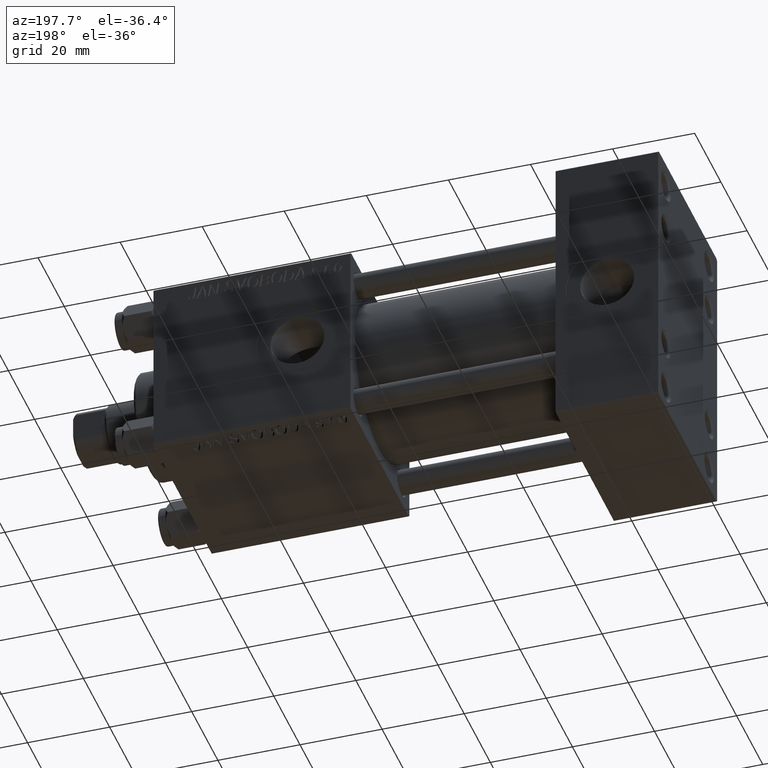
[diagram: clean part render]
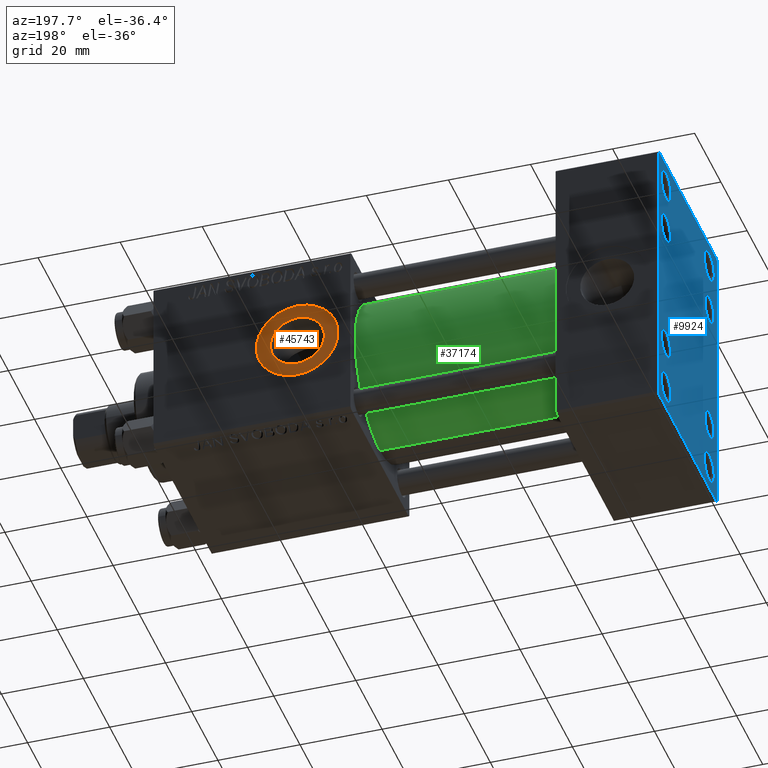
[diagram: same view with three faces highlighted in distinct colors, each labeled with its STEP entity id]
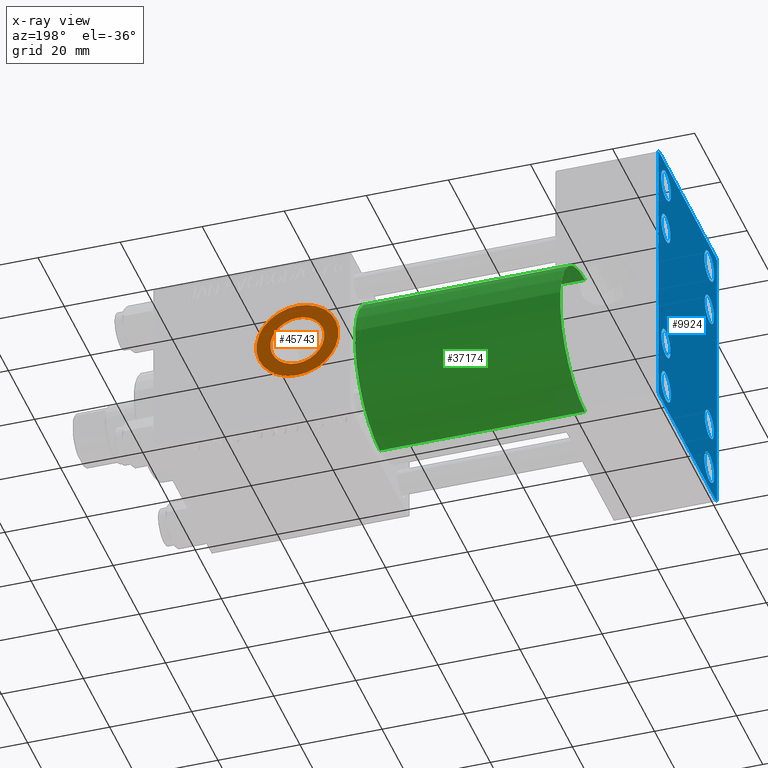
[diagram: x-ray of the same camera — body ghosted, the three highlighted faces saturated]
A machine part, auxiliary view with three faces highlighted in distinct colors.
The next image is the same camera in x-ray (body ghosted, the three faces saturated) — at least one of them is partly hidden behind the body in this view.
Their STEP definitions:

[orange] entity #45743 — the highlighted planar face has unit normal (0, 1, 0).
#512 = CIRCLE ( 'NONE', #35987, 9.999999999999994671 ) ;
#2442 = ORIENTED_EDGE ( 'NONE', *, *, #12221, .T. ) ;
#3038 = DIRECTION ( 'NONE',  ( 0.000000000000000000, 1.000000000000000000, 0.000000000000000000 ) ) ;
#4332 = VERTEX_POINT ( 'NONE', #48278 ) ;
#4487 = AXIS2_PLACEMENT_3D ( 'NONE', #41288, #21078, #33191 ) ;
#5276 = CIRCLE ( 'NONE', #4487, 6.580000000000002736 ) ;
#5495 = VERTEX_POINT ( 'NONE', #10060 ) ;
#6407 = AXIS2_PLACEMENT_3D ( 'NONE', #24805, #43787, #31646 ) ;
#10060 = CARTESIAN_POINT ( 'NONE',  ( 88.00000000000001421, 22.30000000000000426, 9.999999999999994671 ) ) ;
#10211 = EDGE_LOOP ( 'NONE', ( #15109, #29130 ) ) ;
#10616 = EDGE_CURVE ( 'NONE', #10955, #4332, #5276, .T. ) ;
#10955 = VERTEX_POINT ( 'NONE', #38181 ) ;
#11666 = DIRECTION ( 'NONE',  ( 0.000000000000000000, 0.000000000000000000, 1.000000000000000000 ) ) ;
#12041 = ORIENTED_EDGE ( 'NONE', *, *, #13263, .T. ) ;
#12221 = EDGE_CURVE ( 'NONE', #5495, #44033, #31901, .T. ) ;
#13263 = EDGE_CURVE ( 'NONE', #44033, #5495, #512, .T. ) ;
#15109 = ORIENTED_EDGE ( 'NONE', *, *, #21558, .F. ) ;
#16243 = FACE_BOUND ( 'NONE', #10211, .T. ) ;
#20125 = AXIS2_PLACEMENT_3D ( 'NONE', #23017, #41739, #11666 ) ;
#20755 = PLANE ( 'NONE',  #6407 ) ;
#20945 = CIRCLE ( 'NONE', #20125, 6.580000000000002736 ) ;
#21004 = FACE_OUTER_BOUND ( 'NONE', #44561, .T. ) ;
#21078 = DIRECTION ( 'NONE',  ( 0.000000000000000000, 1.000000000000000000, 0.000000000000000000 ) ) ;
#21558 = EDGE_CURVE ( 'NONE', #4332, #10955, #20945, .T. ) ;
#23017 = CARTESIAN_POINT ( 'NONE',  ( 88.00000000000001421, 22.30000000000000426, 0.000000000000000000 ) ) ;
#24805 = CARTESIAN_POINT ( 'NONE',  ( 88.00000000000001421, 22.30000000000000426, 0.000000000000000000 ) ) ;
#29130 = ORIENTED_EDGE ( 'NONE', *, *, #10616, .F. ) ;
#30040 = DIRECTION ( 'NONE',  ( 0.000000000000000000, 1.000000000000000000, 0.000000000000000000 ) ) ;
#30288 = DIRECTION ( 'NONE',  ( 0.000000000000000000, 0.000000000000000000, 1.000000000000000000 ) ) ;
#31646 = DIRECTION ( 'NONE',  ( 0.000000000000000000, -0.000000000000000000, 1.000000000000000000 ) ) ;
#31901 = CIRCLE ( 'NONE', #47263, 9.999999999999994671 ) ;
#33191 = DIRECTION ( 'NONE',  ( 0.000000000000000000, 0.000000000000000000, 1.000000000000000000 ) ) ;
#35987 = AXIS2_PLACEMENT_3D ( 'NONE', #37635, #3038, #30288 ) ;
#37635 = CARTESIAN_POINT ( 'NONE',  ( 88.00000000000001421, 22.30000000000000426, 0.000000000000000000 ) ) ;
#38181 = CARTESIAN_POINT ( 'NONE',  ( 88.00000000000001421, 22.30000000000000426, -6.580000000000002736 ) ) ;
#41288 = CARTESIAN_POINT ( 'NONE',  ( 88.00000000000001421, 22.30000000000000426, 0.000000000000000000 ) ) ;
#41739 = DIRECTION ( 'NONE',  ( 0.000000000000000000, 1.000000000000000000, 0.000000000000000000 ) ) ;
#43787 = DIRECTION ( 'NONE',  ( 0.000000000000000000, 1.000000000000000000, 0.000000000000000000 ) ) ;
#44033 = VERTEX_POINT ( 'NONE', #45626 ) ;
#44240 = CARTESIAN_POINT ( 'NONE',  ( 88.00000000000001421, 22.30000000000000426, 0.000000000000000000 ) ) ;
#44561 = EDGE_LOOP ( 'NONE', ( #2442, #12041 ) ) ;
#45626 = CARTESIAN_POINT ( 'NONE',  ( 88.00000000000001421, 22.30000000000000426, -9.999999999999994671 ) ) ;
#45743 = ADVANCED_FACE ( 'NONE', ( #16243, #21004 ), #20755, .T. ) ;
#47263 = AXIS2_PLACEMENT_3D ( 'NONE', #44240, #30040, #49519 ) ;
#48278 = CARTESIAN_POINT ( 'NONE',  ( 88.00000000000001421, 22.30000000000000426, 6.580000000000002736 ) ) ;
#49519 = DIRECTION ( 'NONE',  ( 0.000000000000000000, 0.000000000000000000, 1.000000000000000000 ) ) ;

[blue] entity #9924 — the highlighted planar face has unit normal (-1, 0, 0).
#251 = VECTOR ( 'NONE', #12976, 999.9999999999998863 ) ;
#463 = DIRECTION ( 'NONE',  ( 0.000000000000000000, 0.000000000000000000, 1.000000000000000000 ) ) ;
#599 = CARTESIAN_POINT ( 'NONE',  ( -0.000000000000000000, -28.50000000000015632, 28.49999999999976197 ) ) ;
#1045 = CARTESIAN_POINT ( 'NONE',  ( 0.000000000000000000, -16.50000000000000711, -32.74999999999997868 ) ) ;
#1120 = VERTEX_POINT ( 'NONE', #47154 ) ;
#1559 = AXIS2_PLACEMENT_3D ( 'NONE', #25576, #14703, #22274 ) ;
#2197 = EDGE_CURVE ( 'NONE', #34756, #6353, #39510, .T. ) ;
#2431 = VERTEX_POINT ( 'NONE', #5349 ) ;
#2604 = DIRECTION ( 'NONE',  ( 0.000000000000000000, 0.000000000000000000, 1.000000000000000000 ) ) ;
#2624 = LINE ( 'NONE', #28887, #25644 ) ;
#3332 = ORIENTED_EDGE ( 'NONE', *, *, #42785, .F. ) ;
#3347 = CARTESIAN_POINT ( 'NONE',  ( 0.000000000000000000, 22.00000000000000355, 35.00000000000000711 ) ) ;
#3505 = EDGE_LOOP ( 'NONE', ( #44525, #20790 ) ) ;
#3697 = EDGE_LOOP ( 'NONE', ( #30006, #47132 ) ) ;
#3852 = DIRECTION ( 'NONE',  ( 0.000000000000000000, 0.000000000000000000, -1.000000000000000000 ) ) ;
#4007 = CARTESIAN_POINT ( 'NONE',  ( 0.000000000000000000, 16.49999999999999289, -29.00000000000000711 ) ) ;
#4340 = DIRECTION ( 'NONE',  ( 0.000000000000000000, 0.000000000000000000, 1.000000000000000000 ) ) ;
#4653 = VERTEX_POINT ( 'NONE', #26419 ) ;
#4678 = CIRCLE ( 'NONE', #48233, 3.499999999999996003 ) ;
#4761 = CARTESIAN_POINT ( 'NONE',  ( 0.000000000000000000, -16.50000000000000711, 32.74999999999996447 ) ) ;
#5349 = CARTESIAN_POINT ( 'NONE',  ( 0.000000000000000000, 16.59999999999999787, 13.10000000000000675 ) ) ;
#5490 = VECTOR ( 'NONE', #13975, 1000.000000000000000 ) ;
#5611 = ORIENTED_EDGE ( 'NONE', *, *, #24217, .T. ) ;
#5694 = FACE_OUTER_BOUND ( 'NONE', #16878, .T. ) ;
#6090 = AXIS2_PLACEMENT_3D ( 'NONE', #34222, #48735, #22605 ) ;
#6176 = EDGE_CURVE ( 'NONE', #17467, #39883, #41528, .T. ) ;
#6353 = VERTEX_POINT ( 'NONE', #49466 ) ;
#6423 = ORIENTED_EDGE ( 'NONE', *, *, #23544, .T. ) ;
#6638 = EDGE_CURVE ( 'NONE', #30995, #11650, #14029, .T. ) ;
#6706 = DIRECTION ( 'NONE',  ( -0.000000000000000000, -0.7071067811865525687, -0.7071067811865425767 ) ) ;
#7147 = CIRCLE ( 'NONE', #11192, 3.499999999999996003 ) ;
#7180 = EDGE_CURVE ( 'NONE', #1120, #4653, #45613, .T. ) ;
#7533 = DIRECTION ( 'NONE',  ( 1.000000000000000000, -0.000000000000000000, 0.000000000000000000 ) ) ;
#7715 = AXIS2_PLACEMENT_3D ( 'NONE', #13616, #32807, #36115 ) ;
#8147 = EDGE_CURVE ( 'NONE', #20565, #42917, #46579, .T. ) ;
#8208 = VERTEX_POINT ( 'NONE', #27089 ) ;
#9215 = EDGE_LOOP ( 'NONE', ( #32690, #39196 ) ) ;
#9479 = FACE_BOUND ( 'NONE', #25355, .T. ) ;
#9924 = ADVANCED_FACE ( 'NONE', ( #40534, #29640, #22046, #37478, #17041, #9479, #40295, #48135, #5694 ), #21066, .T. ) ;
#9959 = LINE ( 'NONE', #36968, #5490 ) ;
#10067 = CARTESIAN_POINT ( 'NONE',  ( 0.000000000000000000, -16.59999999999999076, -16.60000000000000853 ) ) ;
#10086 = AXIS2_PLACEMENT_3D ( 'NONE', #36598, #25206, #36844 ) ;
#10132 = CIRCLE ( 'NONE', #37567, 3.499999999999996003 ) ;
#11026 = CIRCLE ( 'NONE', #6090, 3.749999999999975575 ) ;
#11107 = EDGE_LOOP ( 'NONE', ( #33463, #35536 ) ) ;
#11192 = AXIS2_PLACEMENT_3D ( 'NONE', #28865, #25814, #2604 ) ;
#11487 = CARTESIAN_POINT ( 'NONE',  ( 0.000000000000000000, -16.59999999999999076, 20.10000000000000853 ) ) ;
#11546 = AXIS2_PLACEMENT_3D ( 'NONE', #49225, #34276, #29737 ) ;
#11650 = VERTEX_POINT ( 'NONE', #23071 ) ;
#11796 = CARTESIAN_POINT ( 'NONE',  ( 0.000000000000000000, -16.59999999999999076, 13.10000000000001030 ) ) ;
#11900 = DIRECTION ( 'NONE',  ( 0.000000000000000000, 0.000000000000000000, 1.000000000000000000 ) ) ;
#12172 = DIRECTION ( 'NONE',  ( 1.000000000000000000, -0.000000000000000000, 0.000000000000000000 ) ) ;
#12586 = VERTEX_POINT ( 'NONE', #11487 ) ;
#12797 = CARTESIAN_POINT ( 'NONE',  ( 0.000000000000000000, -16.59999999999999076, -16.60000000000000853 ) ) ;
#12976 = DIRECTION ( 'NONE',  ( 0.000000000000000000, 0.7071067811865376918, -0.7071067811865574537 ) ) ;
#13616 = CARTESIAN_POINT ( 'NONE',  ( 0.000000000000000000, 16.59999999999999787, -16.60000000000000497 ) ) ;
#13778 = LINE ( 'NONE', #26109, #23265 ) ;
#13975 = DIRECTION ( 'NONE',  ( 0.000000000000000000, -1.000000000000000000, -1.541976423090495387E-16 ) ) ;
#14029 = LINE ( 'NONE', #21599, #48795 ) ;
#14086 = DIRECTION ( 'NONE',  ( 1.000000000000000000, -0.000000000000000000, 0.000000000000000000 ) ) ;
#14400 = ORIENTED_EDGE ( 'NONE', *, *, #17964, .T. ) ;
#14703 = DIRECTION ( 'NONE',  ( 1.000000000000000000, -0.000000000000000000, 0.000000000000000000 ) ) ;
#15245 = CARTESIAN_POINT ( 'NONE',  ( 0.000000000000000000, 16.49999999999999289, 28.99999999999998934 ) ) ;
#15426 = CARTESIAN_POINT ( 'NONE',  ( 0.000000000000000000, 16.59999999999999787, 16.60000000000000497 ) ) ;
#15661 = DIRECTION ( 'NONE',  ( 1.000000000000000000, -0.000000000000000000, 0.000000000000000000 ) ) ;
#16525 = CARTESIAN_POINT ( 'NONE',  ( 0.000000000000000000, -16.50000000000000711, -29.00000000000000711 ) ) ;
#16644 = CARTESIAN_POINT ( 'NONE',  ( 0.000000000000000000, -22.49999999999999645, -34.50000000000000000 ) ) ;
#16850 = CIRCLE ( 'NONE', #37032, 3.499999999999996003 ) ;
#16878 = EDGE_LOOP ( 'NONE', ( #39740, #20438, #38193, #14400, #29089, #36999, #3332, #35523 ) ) ;
#17041 = FACE_BOUND ( 'NONE', #41213, .T. ) ;
#17075 = VERTEX_POINT ( 'NONE', #45405 ) ;
#17467 = VERTEX_POINT ( 'NONE', #18405 ) ;
#17665 = DIRECTION ( 'NONE',  ( 0.000000000000000000, 0.000000000000000000, -1.000000000000000000 ) ) ;
#17964 = EDGE_CURVE ( 'NONE', #34479, #18479, #13778, .T. ) ;
#18178 = AXIS2_PLACEMENT_3D ( 'NONE', #15245, #26608, #46096 ) ;
#18405 = CARTESIAN_POINT ( 'NONE',  ( 0.000000000000000000, -16.50000000000000711, -25.25000000000003553 ) ) ;
#18479 = VERTEX_POINT ( 'NONE', #16644 ) ;
#18612 = CARTESIAN_POINT ( 'NONE',  ( 0.000000000000000000, -21.99999999999998934, -35.00000000000000000 ) ) ;
#18739 = CARTESIAN_POINT ( 'NONE',  ( 0.000000000000000000, -21.99999999999998934, 35.00000000000000000 ) ) ;
#19530 = ORIENTED_EDGE ( 'NONE', *, *, #36610, .T. ) ;
#19846 = DIRECTION ( 'NONE',  ( 1.000000000000000000, -0.000000000000000000, 0.000000000000000000 ) ) ;
#20073 = EDGE_CURVE ( 'NONE', #20547, #21984, #23296, .T. ) ;
#20438 = ORIENTED_EDGE ( 'NONE', *, *, #6638, .T. ) ;
#20544 = DIRECTION ( 'NONE',  ( 0.000000000000000000, 0.000000000000000000, 1.000000000000000000 ) ) ;
#20547 = VERTEX_POINT ( 'NONE', #28177 ) ;
#20565 = VERTEX_POINT ( 'NONE', #28415 ) ;
#20790 = ORIENTED_EDGE ( 'NONE', *, *, #7180, .T. ) ;
#21066 = PLANE ( 'NONE',  #23779 ) ;
#21305 = DIRECTION ( 'NONE',  ( -0.000000000000000000, 0.000000000000000000, 1.000000000000000000 ) ) ;
#21599 = CARTESIAN_POINT ( 'NONE',  ( 0.000000000000000000, 28.49999999999984013, -28.50000000000024158 ) ) ;
#21832 = CARTESIAN_POINT ( 'NONE',  ( 0.000000000000000000, 16.49999999999999289, 32.75000000000003553 ) ) ;
#21984 = VERTEX_POINT ( 'NONE', #21832 ) ;
#22046 = FACE_BOUND ( 'NONE', #42251, .T. ) ;
#22052 = ORIENTED_EDGE ( 'NONE', *, *, #30535, .T. ) ;
#22274 = DIRECTION ( 'NONE',  ( 0.000000000000000000, 0.000000000000000000, 1.000000000000000000 ) ) ;
#22605 = DIRECTION ( 'NONE',  ( 0.000000000000000000, 0.000000000000000000, 1.000000000000000000 ) ) ;
#22773 = EDGE_LOOP ( 'NONE', ( #35270, #22052 ) ) ;
#22963 = EDGE_CURVE ( 'NONE', #49255, #12586, #7147, .T. ) ;
#23071 = CARTESIAN_POINT ( 'NONE',  ( 0.000000000000000000, 21.99999999999999645, -34.99999999999999289 ) ) ;
#23243 = CARTESIAN_POINT ( 'NONE',  ( 0.000000000000000000, -16.50000000000000711, 28.99999999999998934 ) ) ;
#23265 = VECTOR ( 'NONE', #41304, 1000.000000000000000 ) ;
#23296 = CIRCLE ( 'NONE', #1559, 3.750000000000044853 ) ;
#23544 = EDGE_CURVE ( 'NONE', #39883, #17467, #28143, .T. ) ;
#23646 = CIRCLE ( 'NONE', #11546, 3.749999999999972022 ) ;
#23779 = AXIS2_PLACEMENT_3D ( 'NONE', #28898, #36736, #21305 ) ;
#23809 = ORIENTED_EDGE ( 'NONE', *, *, #22963, .T. ) ;
#24019 = DIRECTION ( 'NONE',  ( 0.000000000000000000, 0.000000000000000000, 1.000000000000000000 ) ) ;
#24217 = EDGE_CURVE ( 'NONE', #17075, #47869, #16850, .T. ) ;
#25206 = DIRECTION ( 'NONE',  ( 1.000000000000000000, -0.000000000000000000, 0.000000000000000000 ) ) ;
#25355 = EDGE_LOOP ( 'NONE', ( #49295, #5611 ) ) ;
#25576 = CARTESIAN_POINT ( 'NONE',  ( 0.000000000000000000, 16.49999999999999289, 28.99999999999998934 ) ) ;
#25644 = VECTOR ( 'NONE', #41018, 1000.000000000000000 ) ;
#25814 = DIRECTION ( 'NONE',  ( 1.000000000000000000, -0.000000000000000000, 0.000000000000000000 ) ) ;
#26109 = CARTESIAN_POINT ( 'NONE',  ( 0.000000000000000000, -28.50000000000015632, -28.49999999999976197 ) ) ;
#26252 = AXIS2_PLACEMENT_3D ( 'NONE', #32143, #28101, #28836 ) ;
#26419 = CARTESIAN_POINT ( 'NONE',  ( 0.000000000000000000, 16.59999999999999787, -13.10000000000000675 ) ) ;
#26604 = EDGE_CURVE ( 'NONE', #31464, #8208, #23646, .T. ) ;
#26608 = DIRECTION ( 'NONE',  ( 1.000000000000000000, -0.000000000000000000, 0.000000000000000000 ) ) ;
#26766 = VERTEX_POINT ( 'NONE', #4761 ) ;
#26799 = CARTESIAN_POINT ( 'NONE',  ( 0.000000000000000000, 22.50000000000000355, 35.00000000000000711 ) ) ;
#26945 = CIRCLE ( 'NONE', #39095, 3.749999999999972022 ) ;
#27089 = CARTESIAN_POINT ( 'NONE',  ( 0.000000000000000000, 16.49999999999999289, -32.74999999999997868 ) ) ;
#27343 = ORIENTED_EDGE ( 'NONE', *, *, #6176, .T. ) ;
#27557 = DIRECTION ( 'NONE',  ( 1.000000000000000000, -0.000000000000000000, 0.000000000000000000 ) ) ;
#27597 = DIRECTION ( 'NONE',  ( 1.000000000000000000, -0.000000000000000000, 0.000000000000000000 ) ) ;
#27842 = CARTESIAN_POINT ( 'NONE',  ( 0.000000000000000000, 16.59999999999999787, 16.60000000000000497 ) ) ;
#28101 = DIRECTION ( 'NONE',  ( 1.000000000000000000, -0.000000000000000000, 0.000000000000000000 ) ) ;
#28143 = CIRCLE ( 'NONE', #33856, 3.749999999999972022 ) ;
#28177 = CARTESIAN_POINT ( 'NONE',  ( 0.000000000000000000, 16.49999999999999289, 25.24999999999994671 ) ) ;
#28298 = CARTESIAN_POINT ( 'NONE',  ( 0.000000000000000000, -16.59999999999999076, -13.10000000000001030 ) ) ;
#28415 = CARTESIAN_POINT ( 'NONE',  ( 0.000000000000000000, -22.49999999999999645, 34.50000000000000000 ) ) ;
#28465 = CARTESIAN_POINT ( 'NONE',  ( 0.000000000000000000, 16.49999999999999289, -25.25000000000003553 ) ) ;
#28836 = DIRECTION ( 'NONE',  ( 0.000000000000000000, 0.000000000000000000, 1.000000000000000000 ) ) ;
#28865 = CARTESIAN_POINT ( 'NONE',  ( 0.000000000000000000, -16.59999999999999076, 16.60000000000000853 ) ) ;
#28887 = CARTESIAN_POINT ( 'NONE',  ( 0.000000000000000000, 22.50000000000000355, 35.00000000000000711 ) ) ;
#28898 = CARTESIAN_POINT ( 'NONE',  ( 0.000000000000000000, 0.000000000000000000, 0.000000000000000000 ) ) ;
#28996 = VECTOR ( 'NONE', #3852, 1000.000000000000000 ) ;
#29089 = ORIENTED_EDGE ( 'NONE', *, *, #32866, .F. ) ;
#29640 = FACE_BOUND ( 'NONE', #11107, .T. ) ;
#29737 = DIRECTION ( 'NONE',  ( 0.000000000000000000, 0.000000000000000000, 1.000000000000000000 ) ) ;
#30006 = ORIENTED_EDGE ( 'NONE', *, *, #33391, .T. ) ;
#30535 = EDGE_CURVE ( 'NONE', #8208, #31464, #26945, .T. ) ;
#30995 = VERTEX_POINT ( 'NONE', #45314 ) ;
#31464 = VERTEX_POINT ( 'NONE', #28465 ) ;
#31917 = CARTESIAN_POINT ( 'NONE',  ( 0.000000000000000000, 28.50000000000030909, 28.49999999999952038 ) ) ;
#32104 = CARTESIAN_POINT ( 'NONE',  ( 0.000000000000000000, -22.49999999999999645, 35.00000000000000000 ) ) ;
#32143 = CARTESIAN_POINT ( 'NONE',  ( 0.000000000000000000, -16.59999999999999076, 16.60000000000000853 ) ) ;
#32690 = ORIENTED_EDGE ( 'NONE', *, *, #41074, .T. ) ;
#32728 = CIRCLE ( 'NONE', #26252, 3.499999999999996003 ) ;
#32807 = DIRECTION ( 'NONE',  ( 1.000000000000000000, -0.000000000000000000, 0.000000000000000000 ) ) ;
#32866 = EDGE_CURVE ( 'NONE', #20565, #18479, #47787, .T. ) ;
#33149 = EDGE_CURVE ( 'NONE', #47869, #17075, #10132, .T. ) ;
#33391 = EDGE_CURVE ( 'NONE', #21984, #20547, #47320, .T. ) ;
#33463 = ORIENTED_EDGE ( 'NONE', *, *, #36113, .T. ) ;
#33540 = AXIS2_PLACEMENT_3D ( 'NONE', #42485, #12172, #24019 ) ;
#33856 = AXIS2_PLACEMENT_3D ( 'NONE', #16525, #39535, #20544 ) ;
#34222 = CARTESIAN_POINT ( 'NONE',  ( 0.000000000000000000, -16.50000000000000711, 28.99999999999998934 ) ) ;
#34276 = DIRECTION ( 'NONE',  ( 1.000000000000000000, -0.000000000000000000, 0.000000000000000000 ) ) ;
#34479 = VERTEX_POINT ( 'NONE', #18612 ) ;
#34756 = VERTEX_POINT ( 'NONE', #3347 ) ;
#35270 = ORIENTED_EDGE ( 'NONE', *, *, #26604, .T. ) ;
#35523 = ORIENTED_EDGE ( 'NONE', *, *, #2197, .T. ) ;
#35536 = ORIENTED_EDGE ( 'NONE', *, *, #39862, .T. ) ;
#35988 = VECTOR ( 'NONE', #38989, 1000.000000000000000 ) ;
#36113 = EDGE_CURVE ( 'NONE', #26766, #40575, #11026, .T. ) ;
#36115 = DIRECTION ( 'NONE',  ( 0.000000000000000000, 0.000000000000000000, 1.000000000000000000 ) ) ;
#36598 = CARTESIAN_POINT ( 'NONE',  ( 0.000000000000000000, -16.50000000000000711, -29.00000000000000711 ) ) ;
#36610 = EDGE_CURVE ( 'NONE', #12586, #49255, #32728, .T. ) ;
#36736 = DIRECTION ( 'NONE',  ( -1.000000000000000000, 0.000000000000000000, -0.000000000000000000 ) ) ;
#36844 = DIRECTION ( 'NONE',  ( 0.000000000000000000, 0.000000000000000000, 1.000000000000000000 ) ) ;
#36968 = CARTESIAN_POINT ( 'NONE',  ( 0.000000000000000000, 22.50000000000000355, -34.99999999999999289 ) ) ;
#36999 = ORIENTED_EDGE ( 'NONE', *, *, #8147, .T. ) ;
#37032 = AXIS2_PLACEMENT_3D ( 'NONE', #10067, #14086, #48482 ) ;
#37478 = FACE_BOUND ( 'NONE', #22773, .T. ) ;
#37567 = AXIS2_PLACEMENT_3D ( 'NONE', #12797, #19846, #40069 ) ;
#37610 = EDGE_CURVE ( 'NONE', #4653, #1120, #41637, .T. ) ;
#38193 = ORIENTED_EDGE ( 'NONE', *, *, #42826, .T. ) ;
#38454 = LINE ( 'NONE', #26799, #28996 ) ;
#38989 = DIRECTION ( 'NONE',  ( -0.000000000000000000, 0.7071067811865426878, 0.7071067811865524577 ) ) ;
#39095 = AXIS2_PLACEMENT_3D ( 'NONE', #4007, #7533, #463 ) ;
#39167 = VECTOR ( 'NONE', #17665, 1000.000000000000000 ) ;
#39196 = ORIENTED_EDGE ( 'NONE', *, *, #43004, .T. ) ;
#39403 = VERTEX_POINT ( 'NONE', #39852 ) ;
#39510 = LINE ( 'NONE', #31917, #251 ) ;
#39535 = DIRECTION ( 'NONE',  ( 1.000000000000000000, -0.000000000000000000, 0.000000000000000000 ) ) ;
#39740 = ORIENTED_EDGE ( 'NONE', *, *, #49885, .T. ) ;
#39852 = CARTESIAN_POINT ( 'NONE',  ( 0.000000000000000000, 16.59999999999999787, 20.10000000000000142 ) ) ;
#39862 = EDGE_CURVE ( 'NONE', #40575, #26766, #40887, .T. ) ;
#39883 = VERTEX_POINT ( 'NONE', #1045 ) ;
#40069 = DIRECTION ( 'NONE',  ( 0.000000000000000000, 0.000000000000000000, 1.000000000000000000 ) ) ;
#40100 = AXIS2_PLACEMENT_3D ( 'NONE', #23243, #15661, #11900 ) ;
#40295 = FACE_BOUND ( 'NONE', #3505, .T. ) ;
#40534 = FACE_BOUND ( 'NONE', #3697, .T. ) ;
#40575 = VERTEX_POINT ( 'NONE', #48630 ) ;
#40887 = CIRCLE ( 'NONE', #40100, 3.749999999999975575 ) ;
#41018 = DIRECTION ( 'NONE',  ( 0.000000000000000000, -1.000000000000000000, -1.541976423090495387E-16 ) ) ;
#41074 = EDGE_CURVE ( 'NONE', #39403, #2431, #4678, .T. ) ;
#41213 = EDGE_LOOP ( 'NONE', ( #19530, #23809 ) ) ;
#41304 = DIRECTION ( 'NONE',  ( 0.000000000000000000, -0.7071067811865426878, 0.7071067811865524577 ) ) ;
#41528 = CIRCLE ( 'NONE', #10086, 3.749999999999972022 ) ;
#41637 = CIRCLE ( 'NONE', #33540, 3.499999999999996003 ) ;
#42251 = EDGE_LOOP ( 'NONE', ( #27343, #6423 ) ) ;
#42485 = CARTESIAN_POINT ( 'NONE',  ( 0.000000000000000000, 16.59999999999999787, -16.60000000000000497 ) ) ;
#42785 = EDGE_CURVE ( 'NONE', #34756, #42917, #2624, .T. ) ;
#42826 = EDGE_CURVE ( 'NONE', #11650, #34479, #9959, .T. ) ;
#42917 = VERTEX_POINT ( 'NONE', #18739 ) ;
#43004 = EDGE_CURVE ( 'NONE', #2431, #39403, #45070, .T. ) ;
#43467 = AXIS2_PLACEMENT_3D ( 'NONE', #27842, #27597, #43538 ) ;
#43538 = DIRECTION ( 'NONE',  ( 0.000000000000000000, 0.000000000000000000, 1.000000000000000000 ) ) ;
#44525 = ORIENTED_EDGE ( 'NONE', *, *, #37610, .T. ) ;
#45070 = CIRCLE ( 'NONE', #43467, 3.499999999999996003 ) ;
#45314 = CARTESIAN_POINT ( 'NONE',  ( 0.000000000000000000, 22.50000000000000355, -34.49999999999999289 ) ) ;
#45405 = CARTESIAN_POINT ( 'NONE',  ( 0.000000000000000000, -16.59999999999999076, -20.10000000000000497 ) ) ;
#45613 = CIRCLE ( 'NONE', #7715, 3.499999999999996003 ) ;
#46096 = DIRECTION ( 'NONE',  ( 0.000000000000000000, 0.000000000000000000, 1.000000000000000000 ) ) ;
#46579 = LINE ( 'NONE', #599, #35988 ) ;
#47132 = ORIENTED_EDGE ( 'NONE', *, *, #20073, .T. ) ;
#47154 = CARTESIAN_POINT ( 'NONE',  ( 0.000000000000000000, 16.59999999999999787, -20.10000000000000142 ) ) ;
#47320 = CIRCLE ( 'NONE', #18178, 3.750000000000044853 ) ;
#47787 = LINE ( 'NONE', #32104, #39167 ) ;
#47869 = VERTEX_POINT ( 'NONE', #28298 ) ;
#48135 = FACE_BOUND ( 'NONE', #9215, .T. ) ;
#48233 = AXIS2_PLACEMENT_3D ( 'NONE', #15426, #27557, #4340 ) ;
#48482 = DIRECTION ( 'NONE',  ( 0.000000000000000000, 0.000000000000000000, 1.000000000000000000 ) ) ;
#48630 = CARTESIAN_POINT ( 'NONE',  ( 0.000000000000000000, -16.50000000000000711, 25.25000000000001421 ) ) ;
#48735 = DIRECTION ( 'NONE',  ( 1.000000000000000000, -0.000000000000000000, 0.000000000000000000 ) ) ;
#48795 = VECTOR ( 'NONE', #6706, 999.9999999999998863 ) ;
#49225 = CARTESIAN_POINT ( 'NONE',  ( 0.000000000000000000, 16.49999999999999289, -29.00000000000000711 ) ) ;
#49255 = VERTEX_POINT ( 'NONE', #11796 ) ;
#49295 = ORIENTED_EDGE ( 'NONE', *, *, #33149, .T. ) ;
#49466 = CARTESIAN_POINT ( 'NONE',  ( 0.000000000000000000, 22.50000000000000355, 34.49999999999999289 ) ) ;
#49885 = EDGE_CURVE ( 'NONE', #6353, #30995, #38454, .T. ) ;

[green] entity #37174 — the highlighted cylindrical surface (partial cylindrical patch) has radius 19 mm, axis along (-1, -0, -0).
#1277 = AXIS2_PLACEMENT_3D ( 'NONE', #28474, #43915, #9302 ) ;
#1664 = DIRECTION ( 'NONE',  ( 1.000000000000000000, -0.000000000000000000, 0.000000000000000000 ) ) ;
#4018 = CARTESIAN_POINT ( 'NONE',  ( 75.00000000000001421, -2.602085213965210642E-15, 19.00000000000000000 ) ) ;
#4258 = ORIENTED_EDGE ( 'NONE', *, *, #31597, .T. ) ;
#5203 = CARTESIAN_POINT ( 'NONE',  ( 25.00000000000000000, -2.602085213965210642E-15, 0.000000000000000000 ) ) ;
#6244 = LINE ( 'NONE', #48690, #35488 ) ;
#9302 = DIRECTION ( 'NONE',  ( 0.000000000000000000, 0.000000000000000000, 1.000000000000000000 ) ) ;
#13086 = CYLINDRICAL_SURFACE ( 'NONE', #1277, 19.00000000000000000 ) ;
#14117 = DIRECTION ( 'NONE',  ( 1.000000000000000000, 0.000000000000000000, 0.000000000000000000 ) ) ;
#14664 = VERTEX_POINT ( 'NONE', #21086 ) ;
#15104 = EDGE_CURVE ( 'NONE', #49768, #14664, #34300, .T. ) ;
#16068 = EDGE_CURVE ( 'NONE', #22815, #49768, #45794, .T. ) ;
#19136 = DIRECTION ( 'NONE',  ( -1.000000000000000000, -0.000000000000000000, -0.000000000000000000 ) ) ;
#19616 = EDGE_LOOP ( 'NONE', ( #28284, #45425, #4258, #48911 ) ) ;
#19739 = CIRCLE ( 'NONE', #20564, 19.00000000000000000 ) ;
#20326 = DIRECTION ( 'NONE',  ( 0.000000000000000000, 0.000000000000000000, 1.000000000000000000 ) ) ;
#20468 = CARTESIAN_POINT ( 'NONE',  ( 25.00000000000000000, -2.752562955852396712E-16, -19.00000000000000000 ) ) ;
#20564 = AXIS2_PLACEMENT_3D ( 'NONE', #5203, #1664, #20326 ) ;
#20744 = VERTEX_POINT ( 'NONE', #20468 ) ;
#21086 = CARTESIAN_POINT ( 'NONE',  ( 25.00000000000000000, -2.602085213965210642E-15, 19.00000000000000000 ) ) ;
#22176 = DIRECTION ( 'NONE',  ( 0.000000000000000000, 0.000000000000000000, -1.000000000000000000 ) ) ;
#22815 = VERTEX_POINT ( 'NONE', #35725 ) ;
#28284 = ORIENTED_EDGE ( 'NONE', *, *, #16068, .F. ) ;
#28474 = CARTESIAN_POINT ( 'NONE',  ( 75.00000000000001421, -2.602085213965210642E-15, 0.000000000000000000 ) ) ;
#31597 = EDGE_CURVE ( 'NONE', #20744, #14664, #19739, .T. ) ;
#33303 = CARTESIAN_POINT ( 'NONE',  ( 75.00000000000001421, -2.602085213965210642E-15, 0.000000000000000000 ) ) ;
#33498 = DIRECTION ( 'NONE',  ( -1.000000000000000000, -0.000000000000000000, -0.000000000000000000 ) ) ;
#34300 = LINE ( 'NONE', #4018, #49800 ) ;
#35488 = VECTOR ( 'NONE', #33498, 1000.000000000000000 ) ;
#35725 = CARTESIAN_POINT ( 'NONE',  ( 75.00000000000001421, -2.752562955852396712E-16, -19.00000000000000000 ) ) ;
#36905 = AXIS2_PLACEMENT_3D ( 'NONE', #33303, #14117, #22176 ) ;
#37174 = ADVANCED_FACE ( 'NONE', ( #40364 ), #13086, .T. ) ;
#37694 = CARTESIAN_POINT ( 'NONE',  ( 75.00000000000001421, -2.602085213965210642E-15, 19.00000000000000000 ) ) ;
#40364 = FACE_OUTER_BOUND ( 'NONE', #19616, .T. ) ;
#43915 = DIRECTION ( 'NONE',  ( -1.000000000000000000, -0.000000000000000000, -0.000000000000000000 ) ) ;
#45425 = ORIENTED_EDGE ( 'NONE', *, *, #46368, .T. ) ;
#45794 = CIRCLE ( 'NONE', #36905, 19.00000000000000000 ) ;
#46368 = EDGE_CURVE ( 'NONE', #22815, #20744, #6244, .T. ) ;
#48690 = CARTESIAN_POINT ( 'NONE',  ( 75.00000000000001421, -2.752562955852396712E-16, -19.00000000000000000 ) ) ;
#48911 = ORIENTED_EDGE ( 'NONE', *, *, #15104, .F. ) ;
#49768 = VERTEX_POINT ( 'NONE', #37694 ) ;
#49800 = VECTOR ( 'NONE', #19136, 1000.000000000000000 ) ;